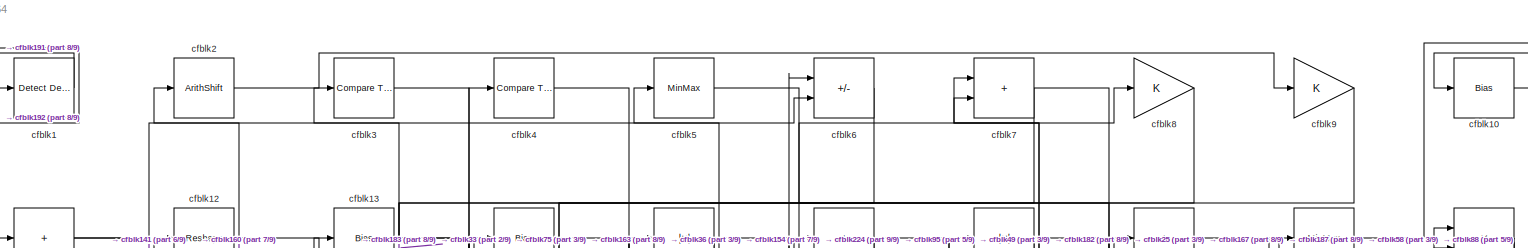
[diagram: root canvas - part 1/9, full width, top band]
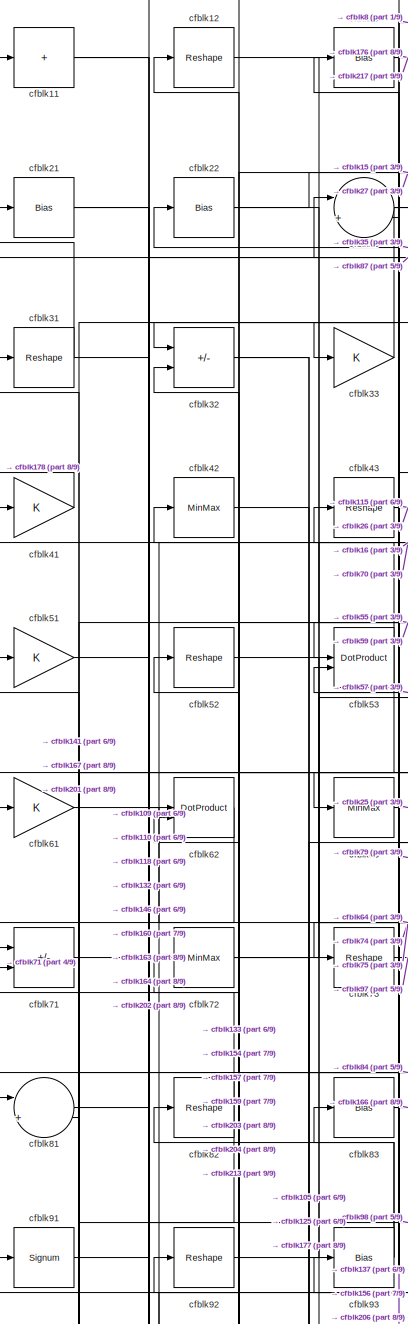
[diagram: root canvas - part 2/9, top left region]
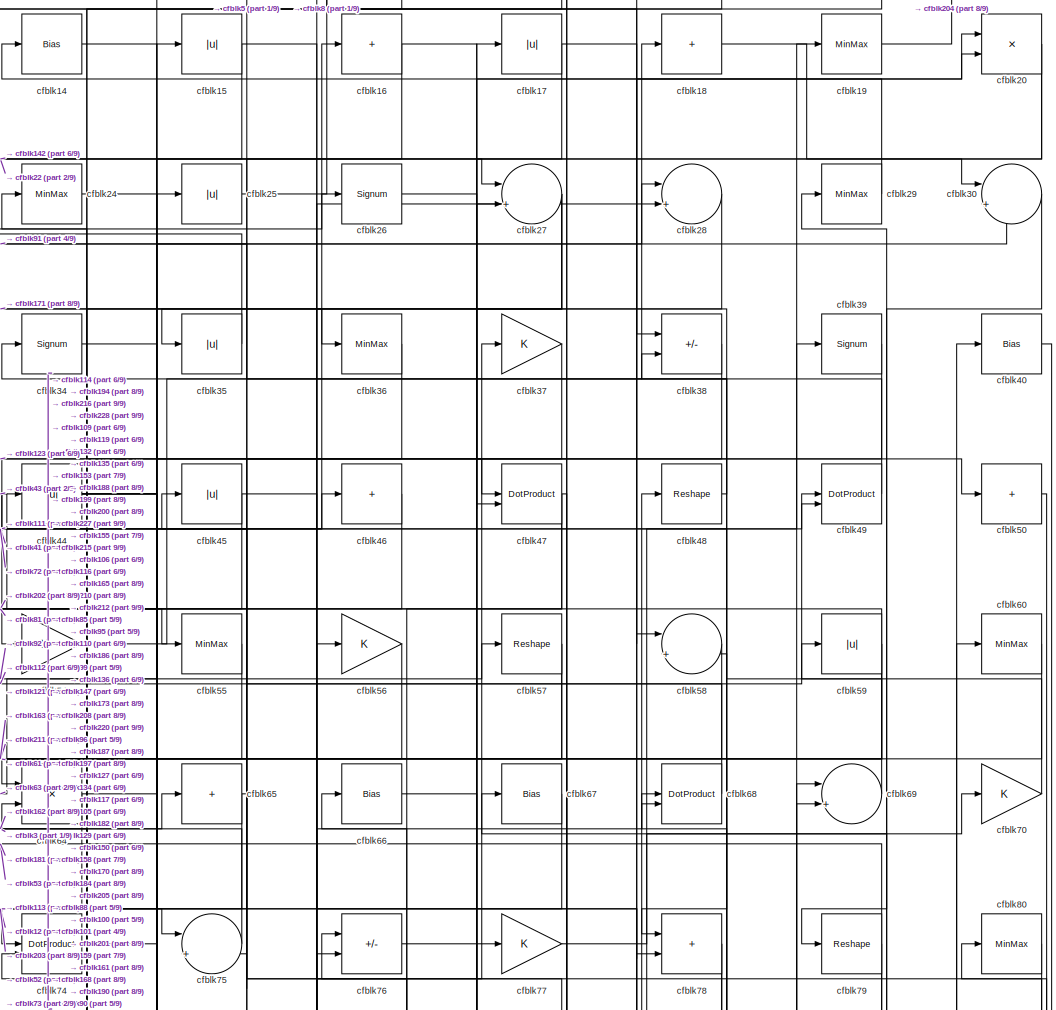
[diagram: root canvas - part 3/9, top center region]
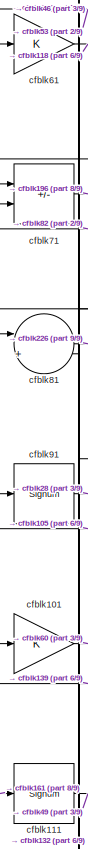
[diagram: root canvas - part 4/9, middle left region]
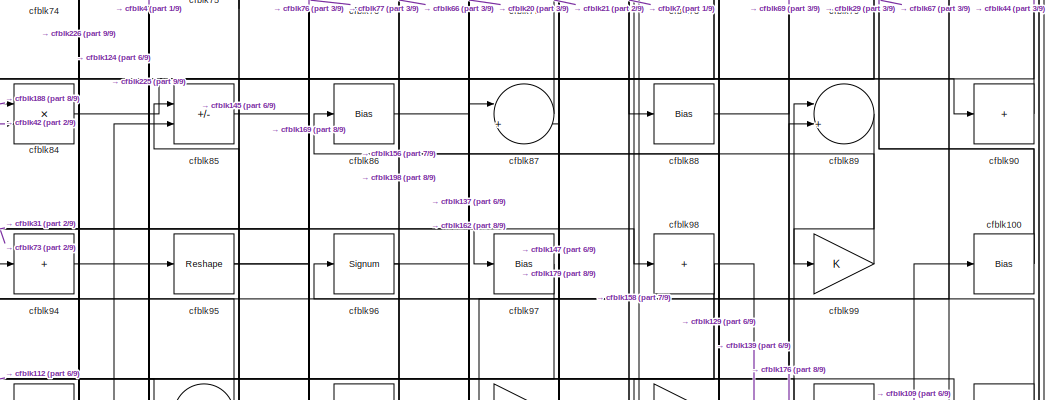
[diagram: root canvas - part 5/9, central region]
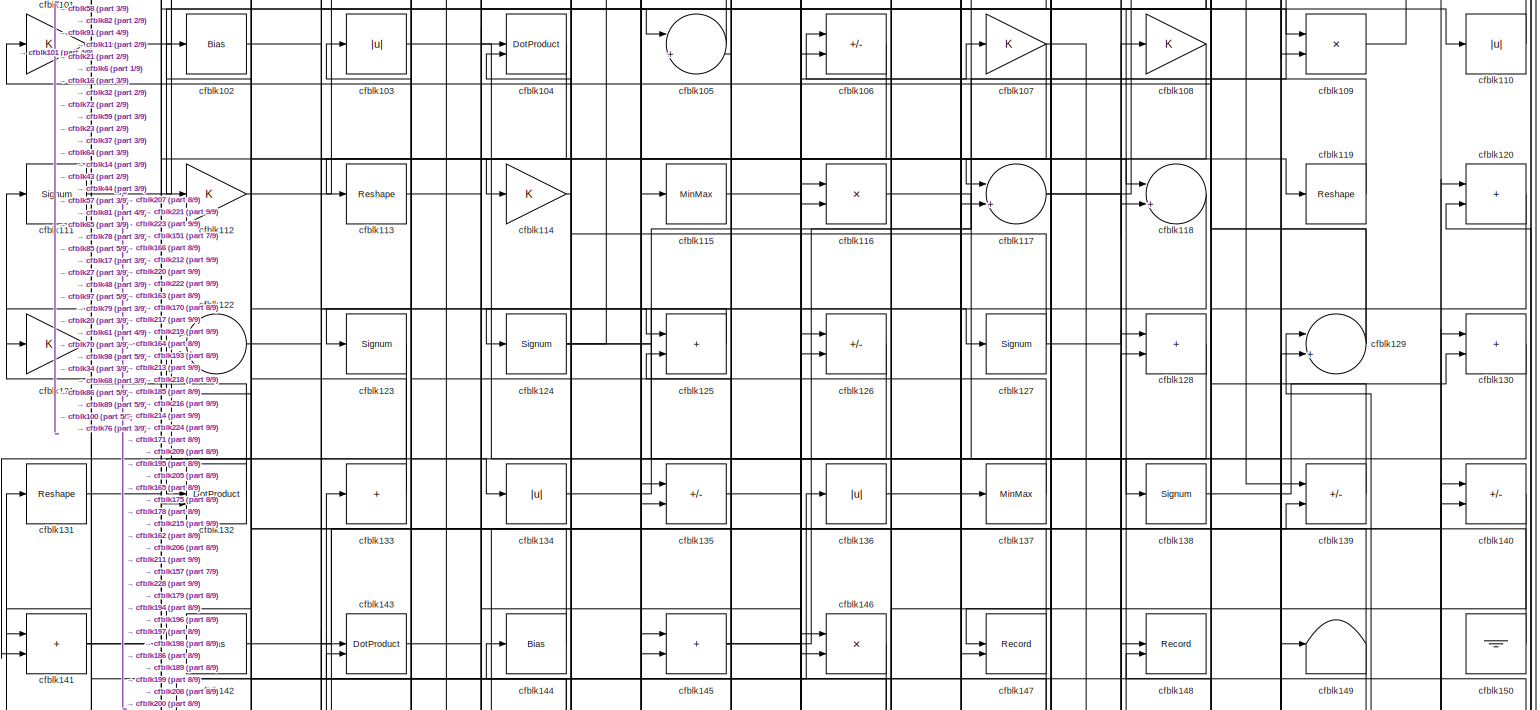
[diagram: root canvas - part 6/9, full width, middle band]
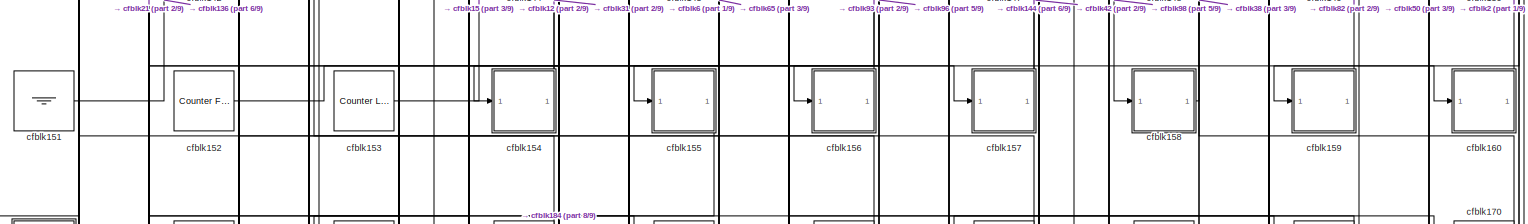
[diagram: root canvas - part 7/9, full width, bottom band]
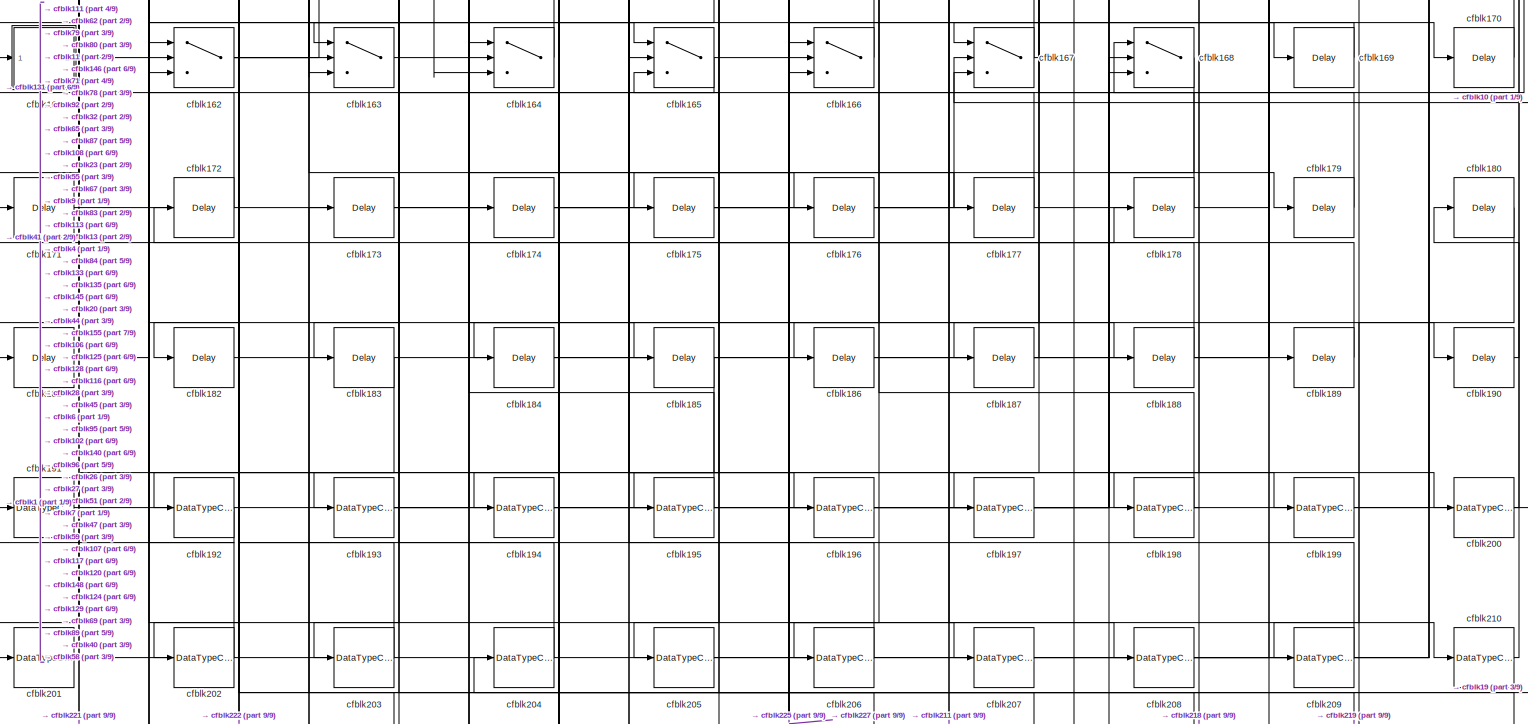
[diagram: root canvas - part 8/9, full width, bottom band]
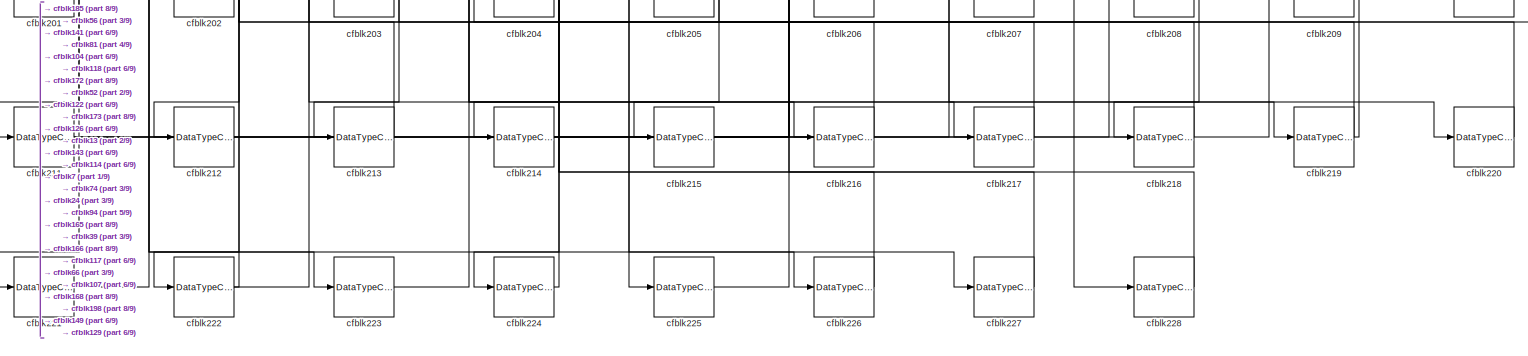
[diagram: root canvas - part 9/9, full width, bottom band]
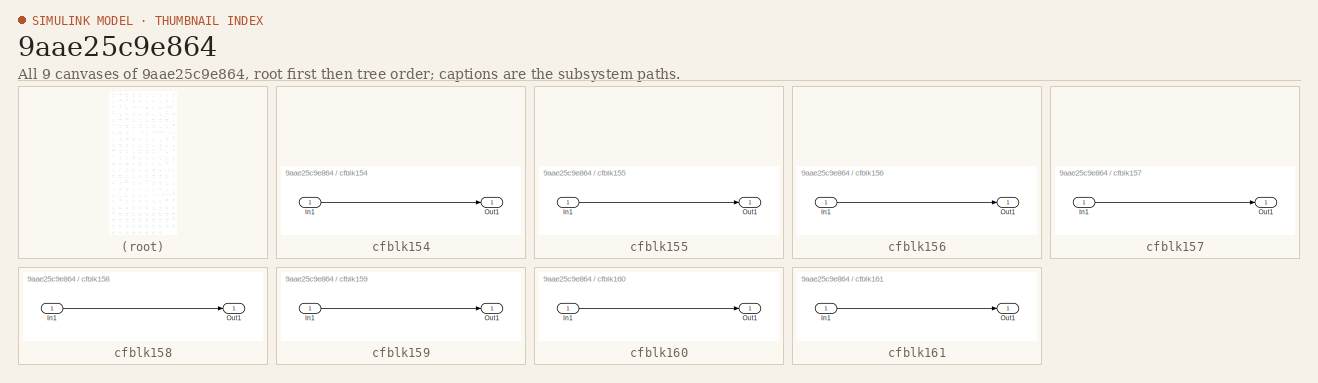
[diagram: thumbnail index - all 9 canvases of the model, root first then tree order]
MODEL slx_9aae25c9e864
KIND model
CONFIG AbsTol = auto
CONFIG EnableMultiTasking = off
CONFIG FixedStep = auto
CONFIG MaxStep = auto
CONFIG MinStep = auto
CONFIG RelTol = 1e-3
CONFIG SampleTimeConstraint = Unconstrained
CONFIG SolverName = VariableStepAuto
CONFIG StartTime = 0.0
CONFIG StopTime = 10.0
BLOCK [Reference] cfblk1  REF=simulink/Logic and Bit
Operations/Detect
Decrease
  LibrarySourceBlock = hdlsllib/Logic and Bit\nOperations/Detect\nDecrease
  SourceBlock = simulink/Logic and Bit\nOperations/Detect\nDecrease
  SourceType = Detect Decrease
BLOCK [Bias] cfblk10
  Bias = 0.0
  SaturateOnIntegerOverflow = off
BLOCK [Bias] cfblk100
  Bias = 0.0
  SaturateOnIntegerOverflow = off
BLOCK [Gain] cfblk101
BLOCK [Bias] cfblk102
  Bias = 0.0
  SaturateOnIntegerOverflow = off
BLOCK [Abs] cfblk103
  SaturateOnIntegerOverflow = off
BLOCK [DotProduct] cfblk104
  OutDataTypeStr = Inherit: Inherit via internal rule
BLOCK [Sum] cfblk105
  Inputs = |++
BLOCK [Sum] cfblk106
  IconShape = rectangular
  Inputs = +-
BLOCK [Gain] cfblk107
BLOCK [Gain] cfblk108
BLOCK [Product] cfblk109
  Inputs = */
  RndMeth = Zero
  SaturateOnIntegerOverflow = on
BLOCK [Sum] cfblk11
  IconShape = rectangular
  Inputs = +
BLOCK [Abs] cfblk110
  SaturateOnIntegerOverflow = off
BLOCK [Signum] cfblk111
BLOCK [Gain] cfblk112
BLOCK [Reshape] cfblk113
BLOCK [Gain] cfblk114
BLOCK [MinMax] cfblk115
BLOCK [Product] cfblk116
  Inputs = */
  RndMeth = Zero
  SaturateOnIntegerOverflow = on
BLOCK [Sum] cfblk117
  Inputs = |++
BLOCK [Sum] cfblk118
  Inputs = |++
BLOCK [Reshape] cfblk119
BLOCK [Reshape] cfblk12
BLOCK [Sum] cfblk120
  IconShape = rectangular
BLOCK [Gain] cfblk121
BLOCK [Sum] cfblk122
  Inputs = |++
BLOCK [Signum] cfblk123
BLOCK [Signum] cfblk124
BLOCK [Sum] cfblk125
  IconShape = rectangular
BLOCK [Sum] cfblk126
  IconShape = rectangular
  Inputs = +-
BLOCK [Signum] cfblk127
BLOCK [Sum] cfblk128
  IconShape = rectangular
BLOCK [Sum] cfblk129
  Inputs = |++
BLOCK [Bias] cfblk13
  Bias = 0.0
  SaturateOnIntegerOverflow = off
BLOCK [Sum] cfblk130
  IconShape = rectangular
BLOCK [Reshape] cfblk131
BLOCK [DotProduct] cfblk132
  OutDataTypeStr = Inherit: Inherit via internal rule
BLOCK [Sum] cfblk133
  IconShape = rectangular
  Inputs = +
BLOCK [Abs] cfblk134
  SaturateOnIntegerOverflow = off
BLOCK [Sum] cfblk135
  IconShape = rectangular
  Inputs = +-
BLOCK [Abs] cfblk136
  SaturateOnIntegerOverflow = off
BLOCK [MinMax] cfblk137
BLOCK [Signum] cfblk138
BLOCK [Sum] cfblk139
  IconShape = rectangular
  Inputs = +-
BLOCK [Bias] cfblk14
  Bias = 0.0
  SaturateOnIntegerOverflow = off
BLOCK [Sum] cfblk140
  IconShape = rectangular
  Inputs = +-
BLOCK [Sum] cfblk141
  IconShape = rectangular
BLOCK [Bias] cfblk142
  Bias = 0.0
  SaturateOnIntegerOverflow = off
BLOCK [DotProduct] cfblk143
  OutDataTypeStr = Inherit: Inherit via internal rule
BLOCK [Bias] cfblk144
  Bias = 0.0
  SaturateOnIntegerOverflow = off
BLOCK [Sum] cfblk145
  IconShape = rectangular
BLOCK [Product] cfblk146
  Inputs = */
  RndMeth = Zero
  SaturateOnIntegerOverflow = on
BLOCK [Record] cfblk147
  CompatibilityTag = XY
  FileSettingsInternal = {"entries":[{"content":{"excelSettings":{"content":{},"type":"Streamout.ExcelSettings"}},"type":"Streamout.FileSettingStorage","uuid":""}],"packageUris":["http:\/\/schema.mathworks.com\/mf0\/streamout_blocks\/R2020a"],"version":"1.0"}
  Layout = [1 1]
  SignalsInternal = {"entries":[{"content":{"signals":[{"content":{"blockPath":[],"dimensions":[1],"domain":"","lineColor":"#a2142f","plots":[1],"port":1,"signalID":4171,"signalName":"XY Graph:1"},"type":"RecordBlkView.Signal","uuid":""},{"content":{"blockPath":[],"dimensions":[1],"domain":"","lineColor":"#139fff","plots":[1],"port":2,"signalID":4174,"signalName":"XY Graph:2"},"type":"RecordBlkView.Signal","uuid":""}...<+146ch>
  VisualizationBindings = {"xyplotplugin":{"info":[{"series":[{"bindingParametersList":[{"parameter":"X-Axis","signalID":4171,"signalName":"XY Graph:1"},{"parameter":"Y-Axis","signalID":4174,"signalName":"XY Graph:2"}],"seriesID":6691}],"subplotID":1}]}}
  st = -1
BLOCK [Record] cfblk148
  CompatibilityTag = XY
  FileSettingsInternal = {"entries":[{"content":{"excelSettings":{"content":{},"type":"Streamout.ExcelSettings"}},"type":"Streamout.FileSettingStorage","uuid":""}],"packageUris":["http:\/\/schema.mathworks.com\/mf0\/streamout_blocks\/R2020a"],"version":"1.0"}
  Layout = [1 1]
  SignalsInternal = {"entries":[{"content":{"signals":[{"content":{"blockPath":[],"dimensions":[1],"domain":"","lineColor":"#a2142f","plots":[1],"port":1,"signalID":4179,"signalName":"XY Graph:1"},"type":"RecordBlkView.Signal","uuid":""},{"content":{"blockPath":[],"dimensions":[1],"domain":"","lineColor":"#139fff","plots":[1],"port":2,"signalID":4182,"signalName":"XY Graph:2"},"type":"RecordBlkView.Signal","uuid":""}...<+146ch>
  VisualizationBindings = {"xyplotplugin":{"info":[{"series":[{"bindingParametersList":[{"parameter":"X-Axis","signalID":4179,"signalName":"XY Graph:1"},{"parameter":"Y-Axis","signalID":4182,"signalName":"XY Graph:2"}],"seriesID":17608}],"subplotID":1}]}}
  st = -1
BLOCK [Terminator] cfblk149
BLOCK [Abs] cfblk15
  SaturateOnIntegerOverflow = off
BLOCK [Ground] cfblk150
BLOCK [Ground] cfblk151
BLOCK [Reference] cfblk152  REF=hdlsllib/Sources/Counter
Free-Running
  SourceBlock = hdlsllib/Sources/Counter\nFree-Running
  SourceType = Counter Free-Running
BLOCK [Reference] cfblk153  REF=hdlsllib/Sources/Counter
Limited
  SourceBlock = hdlsllib/Sources/Counter\nLimited
  SourceType = Counter Limited
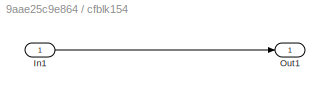
BLOCK [SubSystem] cfblk154
  LibrarySourceBlock = hdlsllib/Ports &\nSubsystems/Subsystem
BLOCK [Inport] cfblk154/In1
BLOCK [Outport] cfblk154/Out1
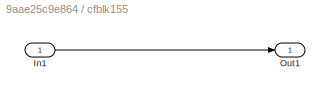
BLOCK [SubSystem] cfblk155
  LibrarySourceBlock = hdlsllib/Ports &\nSubsystems/Subsystem
BLOCK [Inport] cfblk155/In1
BLOCK [Outport] cfblk155/Out1
BLOCK [SubSystem] cfblk156
  LibrarySourceBlock = hdlsllib/Ports &\nSubsystems/Subsystem
BLOCK [Inport] cfblk156/In1
BLOCK [Outport] cfblk156/Out1
BLOCK [SubSystem] cfblk157
  LibrarySourceBlock = hdlsllib/Ports &\nSubsystems/Subsystem
BLOCK [Inport] cfblk157/In1
BLOCK [Outport] cfblk157/Out1
BLOCK [SubSystem] cfblk158
  LibrarySourceBlock = hdlsllib/Ports &\nSubsystems/Subsystem
BLOCK [Inport] cfblk158/In1
BLOCK [Outport] cfblk158/Out1
BLOCK [SubSystem] cfblk159
  LibrarySourceBlock = hdlsllib/Ports &\nSubsystems/Subsystem
BLOCK [Inport] cfblk159/In1
BLOCK [Outport] cfblk159/Out1
BLOCK [Sum] cfblk16
  IconShape = rectangular
  Inputs = +
BLOCK [SubSystem] cfblk160
  LibrarySourceBlock = hdlsllib/Ports &\nSubsystems/Subsystem
BLOCK [Inport] cfblk160/In1
BLOCK [Outport] cfblk160/Out1
BLOCK [SubSystem] cfblk161
  LibrarySourceBlock = hdlsllib/Ports &\nSubsystems/Subsystem
BLOCK [Inport] cfblk161/In1
BLOCK [Outport] cfblk161/Out1
BLOCK [Switch] cfblk162
  InputSameDT = off
  SaturateOnIntegerOverflow = off
BLOCK [Switch] cfblk163
  InputSameDT = off
  SaturateOnIntegerOverflow = off
BLOCK [Switch] cfblk164
  InputSameDT = off
  SaturateOnIntegerOverflow = off
BLOCK [Switch] cfblk165
  InputSameDT = off
  SaturateOnIntegerOverflow = off
BLOCK [Switch] cfblk166
  InputSameDT = off
  SaturateOnIntegerOverflow = off
BLOCK [Switch] cfblk167
  InputSameDT = off
  SaturateOnIntegerOverflow = off
BLOCK [Switch] cfblk168
  InputSameDT = off
  SaturateOnIntegerOverflow = off
BLOCK [Delay] cfblk169
  InputPortMap = u0
  SampleTime = 1
BLOCK [Abs] cfblk17
  SaturateOnIntegerOverflow = off
BLOCK [Delay] cfblk170
  InputPortMap = u0
  SampleTime = 1
BLOCK [Delay] cfblk171
  InputPortMap = u0
  SampleTime = 1
BLOCK [Delay] cfblk172
  InputPortMap = u0
  SampleTime = 1
BLOCK [Delay] cfblk173
  InputPortMap = u0
  SampleTime = 1
BLOCK [Delay] cfblk174
  InputPortMap = u0
  SampleTime = 1
BLOCK [Delay] cfblk175
  InputPortMap = u0
  SampleTime = 1
BLOCK [Delay] cfblk176
  InputPortMap = u0
  SampleTime = 1
BLOCK [Delay] cfblk177
  InputPortMap = u0
  SampleTime = 1
BLOCK [Delay] cfblk178
  InputPortMap = u0
  SampleTime = 1
BLOCK [Delay] cfblk179
  InputPortMap = u0
  SampleTime = 1
BLOCK [Sum] cfblk18
  IconShape = rectangular
  Inputs = +
BLOCK [Delay] cfblk180
  InputPortMap = u0
  SampleTime = 1
BLOCK [Delay] cfblk181
  InputPortMap = u0
  SampleTime = 1
BLOCK [Delay] cfblk182
  InputPortMap = u0
  SampleTime = 1
BLOCK [Delay] cfblk183
  InputPortMap = u0
  SampleTime = 1
BLOCK [Delay] cfblk184
  InputPortMap = u0
  SampleTime = 1
BLOCK [Delay] cfblk185
  InputPortMap = u0
  SampleTime = 1
BLOCK [Delay] cfblk186
  InputPortMap = u0
  SampleTime = 1
BLOCK [Delay] cfblk187
  InputPortMap = u0
  SampleTime = 1
BLOCK [Delay] cfblk188
  InputPortMap = u0
  SampleTime = 1
BLOCK [Delay] cfblk189
  InputPortMap = u0
  SampleTime = 1
BLOCK [MinMax] cfblk19
BLOCK [Delay] cfblk190
  InputPortMap = u0
  SampleTime = 1
BLOCK [DataTypeConversion] cfblk191
  OutDataTypeStr = uint8
  RndMeth = Floor
  SaturateOnIntegerOverflow = off
BLOCK [DataTypeConversion] cfblk192
  OutDataTypeStr = uint8
  RndMeth = Floor
  SaturateOnIntegerOverflow = off
BLOCK [DataTypeConversion] cfblk193
  RndMeth = Floor
  SaturateOnIntegerOverflow = off
BLOCK [DataTypeConversion] cfblk194
  OutDataTypeStr = uint8
  RndMeth = Floor
  SaturateOnIntegerOverflow = off
BLOCK [DataTypeConversion] cfblk195
  OutDataTypeStr = uint8
  RndMeth = Floor
  SaturateOnIntegerOverflow = off
BLOCK [DataTypeConversion] cfblk196
  OutDataTypeStr = uint8
  RndMeth = Floor
  SaturateOnIntegerOverflow = off
BLOCK [DataTypeConversion] cfblk197
  OutDataTypeStr = uint8
  RndMeth = Floor
  SaturateOnIntegerOverflow = off
BLOCK [DataTypeConversion] cfblk198
  RndMeth = Floor
  SaturateOnIntegerOverflow = off
BLOCK [DataTypeConversion] cfblk199
  OutDataTypeStr = uint8
  RndMeth = Floor
  SaturateOnIntegerOverflow = off
BLOCK [ArithShift] cfblk2
  BitShiftNumber = 8
  InputPortMap = u0
BLOCK [Product] cfblk20
  Inputs = */
  RndMeth = Zero
  SaturateOnIntegerOverflow = on
BLOCK [DataTypeConversion] cfblk200
  OutDataTypeStr = uint8
  RndMeth = Floor
  SaturateOnIntegerOverflow = off
BLOCK [DataTypeConversion] cfblk201
  OutDataTypeStr = uint8
  RndMeth = Floor
  SaturateOnIntegerOverflow = off
BLOCK [DataTypeConversion] cfblk202
  OutDataTypeStr = uint8
  RndMeth = Floor
  SaturateOnIntegerOverflow = off
BLOCK [DataTypeConversion] cfblk203
  OutDataTypeStr = uint8
  RndMeth = Floor
  SaturateOnIntegerOverflow = off
BLOCK [DataTypeConversion] cfblk204
  OutDataTypeStr = uint8
  RndMeth = Floor
  SaturateOnIntegerOverflow = off
BLOCK [DataTypeConversion] cfblk205
  OutDataTypeStr = uint8
  RndMeth = Floor
  SaturateOnIntegerOverflow = off
BLOCK [DataTypeConversion] cfblk206
  OutDataTypeStr = uint8
  RndMeth = Floor
  SaturateOnIntegerOverflow = off
BLOCK [DataTypeConversion] cfblk207
  OutDataTypeStr = uint8
  RndMeth = Floor
  SaturateOnIntegerOverflow = off
BLOCK [DataTypeConversion] cfblk208
  OutDataTypeStr = uint8
  RndMeth = Floor
  SaturateOnIntegerOverflow = off
BLOCK [DataTypeConversion] cfblk209
  OutDataTypeStr = uint8
  RndMeth = Floor
  SaturateOnIntegerOverflow = off
BLOCK [Bias] cfblk21
  Bias = 0.0
  SaturateOnIntegerOverflow = off
BLOCK [DataTypeConversion] cfblk210
  OutDataTypeStr = uint8
  RndMeth = Floor
  SaturateOnIntegerOverflow = off
BLOCK [DataTypeConversion] cfblk211
  RndMeth = Floor
  SaturateOnIntegerOverflow = off
BLOCK [DataTypeConversion] cfblk212
  OutDataTypeStr = uint8
  RndMeth = Floor
  SaturateOnIntegerOverflow = off
BLOCK [DataTypeConversion] cfblk213
  OutDataTypeStr = uint8
  RndMeth = Floor
  SaturateOnIntegerOverflow = off
BLOCK [DataTypeConversion] cfblk214
  OutDataTypeStr = uint8
  RndMeth = Floor
  SaturateOnIntegerOverflow = off
BLOCK [DataTypeConversion] cfblk215
  OutDataTypeStr = uint8
  RndMeth = Floor
  SaturateOnIntegerOverflow = off
BLOCK [DataTypeConversion] cfblk216
  OutDataTypeStr = uint8
  RndMeth = Floor
  SaturateOnIntegerOverflow = off
BLOCK [DataTypeConversion] cfblk217
  OutDataTypeStr = uint8
  RndMeth = Floor
  SaturateOnIntegerOverflow = off
BLOCK [DataTypeConversion] cfblk218
  OutDataTypeStr = uint8
  RndMeth = Floor
  SaturateOnIntegerOverflow = off
BLOCK [DataTypeConversion] cfblk219
  RndMeth = Floor
  SaturateOnIntegerOverflow = off
BLOCK [Bias] cfblk22
  Bias = 0.0
  SaturateOnIntegerOverflow = off
BLOCK [DataTypeConversion] cfblk220
  OutDataTypeStr = uint8
  RndMeth = Floor
  SaturateOnIntegerOverflow = off
BLOCK [DataTypeConversion] cfblk221
  OutDataTypeStr = uint8
  RndMeth = Floor
  SaturateOnIntegerOverflow = off
BLOCK [DataTypeConversion] cfblk222
  RndMeth = Floor
  SaturateOnIntegerOverflow = off
BLOCK [DataTypeConversion] cfblk223
  OutDataTypeStr = uint8
  RndMeth = Floor
  SaturateOnIntegerOverflow = off
BLOCK [DataTypeConversion] cfblk224
  OutDataTypeStr = uint8
  RndMeth = Floor
  SaturateOnIntegerOverflow = off
BLOCK [DataTypeConversion] cfblk225
  OutDataTypeStr = uint8
  RndMeth = Floor
  SaturateOnIntegerOverflow = off
BLOCK [DataTypeConversion] cfblk226
  OutDataTypeStr = uint8
  RndMeth = Floor
  SaturateOnIntegerOverflow = off
BLOCK [DataTypeConversion] cfblk227
  OutDataTypeStr = uint8
  RndMeth = Floor
  SaturateOnIntegerOverflow = off
BLOCK [DataTypeConversion] cfblk228
  OutDataTypeStr = uint8
  RndMeth = Floor
  SaturateOnIntegerOverflow = off
BLOCK [Sum] cfblk23
  Inputs = |++
BLOCK [MinMax] cfblk24
BLOCK [Abs] cfblk25
  SaturateOnIntegerOverflow = off
BLOCK [Signum] cfblk26
BLOCK [Sum] cfblk27
  Inputs = |++
BLOCK [Sum] cfblk28
  Inputs = |++
BLOCK [MinMax] cfblk29
BLOCK [Reference] cfblk3  REF=hdlsllib/Logic and Bit
Operations/Compare
To Constant
  SourceBlock = hdlsllib/Logic and Bit\nOperations/Compare\nTo Constant
  SourceType = Compare To Constant
BLOCK [Sum] cfblk30
  Inputs = |++
BLOCK [Reshape] cfblk31
BLOCK [Sum] cfblk32
  IconShape = rectangular
  Inputs = +-
BLOCK [Gain] cfblk33
BLOCK [Signum] cfblk34
BLOCK [Abs] cfblk35
  SaturateOnIntegerOverflow = off
BLOCK [MinMax] cfblk36
BLOCK [Gain] cfblk37
BLOCK [Sum] cfblk38
  IconShape = rectangular
  Inputs = +-
BLOCK [Signum] cfblk39
BLOCK [Reference] cfblk4  REF=hdlsllib/Logic and Bit
Operations/Compare
To Zero
  SourceBlock = hdlsllib/Logic and Bit\nOperations/Compare\nTo Zero
  SourceType = Compare To Zero
BLOCK [Bias] cfblk40
  Bias = 0.0
  SaturateOnIntegerOverflow = off
BLOCK [Gain] cfblk41
BLOCK [MinMax] cfblk42
BLOCK [Reshape] cfblk43
BLOCK [Abs] cfblk44
  SaturateOnIntegerOverflow = off
BLOCK [Abs] cfblk45
  SaturateOnIntegerOverflow = off
BLOCK [Sum] cfblk46
  IconShape = rectangular
  Inputs = +
BLOCK [DotProduct] cfblk47
  OutDataTypeStr = Inherit: Inherit via internal rule
BLOCK [Reshape] cfblk48
BLOCK [DotProduct] cfblk49
  OutDataTypeStr = Inherit: Inherit via internal rule
BLOCK [MinMax] cfblk5
BLOCK [Sum] cfblk50
  IconShape = rectangular
  Inputs = +
BLOCK [Gain] cfblk51
BLOCK [Reshape] cfblk52
BLOCK [DotProduct] cfblk53
  OutDataTypeStr = Inherit: Inherit via internal rule
BLOCK [Gain] cfblk54
BLOCK [MinMax] cfblk55
BLOCK [Gain] cfblk56
BLOCK [Reshape] cfblk57
BLOCK [Sum] cfblk58
  Inputs = |++
BLOCK [Abs] cfblk59
  SaturateOnIntegerOverflow = off
BLOCK [Sum] cfblk6
  IconShape = rectangular
  Inputs = +-
BLOCK [MinMax] cfblk60
BLOCK [Gain] cfblk61
BLOCK [DotProduct] cfblk62
  OutDataTypeStr = Inherit: Inherit via internal rule
BLOCK [MinMax] cfblk63
BLOCK [Product] cfblk64
  Inputs = */
  RndMeth = Zero
  SaturateOnIntegerOverflow = on
BLOCK [Sum] cfblk65
  IconShape = rectangular
  Inputs = +
BLOCK [Bias] cfblk66
  Bias = 0.0
  SaturateOnIntegerOverflow = off
BLOCK [Bias] cfblk67
  Bias = 0.0
  SaturateOnIntegerOverflow = off
BLOCK [DotProduct] cfblk68
  OutDataTypeStr = Inherit: Inherit via internal rule
BLOCK [Sum] cfblk69
  Inputs = |++
BLOCK [Sum] cfblk7
  IconShape = rectangular
BLOCK [Gain] cfblk70
BLOCK [Sum] cfblk71
  IconShape = rectangular
  Inputs = +-
BLOCK [MinMax] cfblk72
BLOCK [Reshape] cfblk73
BLOCK [DotProduct] cfblk74
  OutDataTypeStr = Inherit: Inherit via internal rule
BLOCK [Sum] cfblk75
  Inputs = |++
BLOCK [Sum] cfblk76
  IconShape = rectangular
  Inputs = +-
BLOCK [Gain] cfblk77
BLOCK [Sum] cfblk78
  IconShape = rectangular
BLOCK [Reshape] cfblk79
BLOCK [Gain] cfblk8
BLOCK [MinMax] cfblk80
BLOCK [Sum] cfblk81
  Inputs = |++
BLOCK [Reshape] cfblk82
BLOCK [Bias] cfblk83
  Bias = 0.0
  SaturateOnIntegerOverflow = off
BLOCK [Product] cfblk84
  Inputs = */
  RndMeth = Zero
  SaturateOnIntegerOverflow = on
BLOCK [Sum] cfblk85
  IconShape = rectangular
  Inputs = +-
BLOCK [Bias] cfblk86
  Bias = 0.0
  SaturateOnIntegerOverflow = off
BLOCK [Sum] cfblk87
  Inputs = |++
BLOCK [Bias] cfblk88
  Bias = 0.0
  SaturateOnIntegerOverflow = off
BLOCK [Sum] cfblk89
  Inputs = |++
BLOCK [Gain] cfblk9
BLOCK [Sum] cfblk90
  IconShape = rectangular
  Inputs = +
BLOCK [Signum] cfblk91
BLOCK [Reshape] cfblk92
BLOCK [Bias] cfblk93
  Bias = 0.0
  SaturateOnIntegerOverflow = off
BLOCK [Sum] cfblk94
  IconShape = rectangular
  Inputs = +
BLOCK [Reshape] cfblk95
BLOCK [Signum] cfblk96
BLOCK [Bias] cfblk97
  Bias = 0.0
  SaturateOnIntegerOverflow = off
BLOCK [Sum] cfblk98
  IconShape = rectangular
  Inputs = +
BLOCK [Gain] cfblk99
NET cfblk100:1 -> cfblk29:1, cfblk67:1
LINE cfblk101:1 -> cfblk60:1
LINE cfblk102:1 -> cfblk170:1
LINE cfblk103:1 -> cfblk148:1
LINE cfblk104:1 -> cfblk222:1
LINE cfblk105:1 -> cfblk81:2
LINE cfblk106:1 -> cfblk205:1
NET cfblk107:1 -> cfblk163:3, cfblk228:1
LINE cfblk108:1 -> cfblk193:1
LINE cfblk109:1 -> cfblk100:1
LINE cfblk10:1 -> cfblk167:2
LINE cfblk110:1 -> cfblk76:1
LINE cfblk111:1 -> cfblk49:2
LINE cfblk112:1 -> cfblk59:1
LINE cfblk113:1 -> cfblk185:1
LINE cfblk114:1 -> cfblk214:1
LINE cfblk115:1 -> cfblk107:1
LINE cfblk116:1 -> cfblk138:1
NET cfblk117:1 -> cfblk179:1, cfblk70:1
LINE cfblk118:1 -> cfblk212:1
LINE cfblk119:1 -> cfblk106:1
NET cfblk11:1 -> cfblk118:1, cfblk163:2
LINE cfblk120:1 -> cfblk198:1
LINE cfblk121:1 -> cfblk134:1
LINE cfblk122:1 -> cfblk219:1
LINE cfblk123:1 -> cfblk141:2
NET cfblk124:1 -> cfblk127:1, cfblk189:1, cfblk85:2
LINE cfblk125:1 -> cfblk124:1
LINE cfblk126:1 -> cfblk213:1
NET cfblk127:1 -> cfblk20:1, cfblk64:2
LINE cfblk128:1 -> cfblk195:1
NET cfblk129:1 -> cfblk34:1, cfblk86:1
LINE cfblk12:1 -> cfblk75:1
LINE cfblk130:1 -> cfblk145:2
LINE cfblk131:1 -> cfblk207:1
LINE cfblk132:1 -> cfblk91:1
LINE cfblk133:1 -> cfblk32:2
LINE cfblk134:1 -> cfblk48:1
LINE cfblk135:1 -> cfblk68:2
LINE cfblk136:1 -> cfblk17:1
LINE cfblk137:1 -> cfblk23:2
LINE cfblk138:1 -> cfblk130:2
LINE cfblk139:1 -> cfblk101:1
NET cfblk13:1 -> cfblk176:1, cfblk217:1
LINE cfblk140:1 -> cfblk206:1
NET cfblk141:1 -> cfblk223:1, cfblk6:2
LINE cfblk142:1 -> cfblk130:1
LINE cfblk143:1 -> cfblk216:1
LINE cfblk144:1 -> cfblk103:1
NET cfblk145:1 -> cfblk139:2, cfblk85:1, cfblk89:1
LINE cfblk146:1 -> cfblk162:2
LINE cfblk14:1 -> cfblk119:1
LINE cfblk150:1 -> cfblk68:1
LINE cfblk151:1 -> cfblk136:1
LINE cfblk152:1 -> cfblk157:1
LINE cfblk153:1 -> cfblk15:1
LINE cfblk154/In1:1 -> cfblk154/Out1:1
NET cfblk154:1 -> cfblk12:1, cfblk31:1
LINE cfblk155/In1:1 -> cfblk155/Out1:1
LINE cfblk155:1 -> cfblk184:1
LINE cfblk156/In1:1 -> cfblk156/Out1:1
LINE cfblk156:1 -> cfblk93:1
LINE cfblk157/In1:1 -> cfblk157/Out1:1
NET cfblk157:1 -> cfblk144:1, cfblk42:1
LINE cfblk158/In1:1 -> cfblk158/Out1:1
LINE cfblk158:1 -> cfblk38:2
LINE cfblk159/In1:1 -> cfblk159/Out1:1
LINE cfblk159:1 -> cfblk82:1
NET cfblk15:1 -> cfblk63:1, cfblk78:2
LINE cfblk160/In1:1 -> cfblk160/Out1:1
LINE cfblk160:1 -> cfblk2:1
LINE cfblk161/In1:1 -> cfblk161/Out1:1
NET cfblk161:1 -> cfblk111:1, cfblk190:1
NET cfblk162:1 -> cfblk165:1, cfblk65:1, cfblk87:1
LINE cfblk163:1 -> cfblk4:1
LINE cfblk164:1 -> cfblk133:1
NET cfblk165:1 -> cfblk131:1, cfblk28:2
LINE cfblk166:1 -> cfblk102:1
NET cfblk167:1 -> cfblk51:1, cfblk7:1
LINE cfblk168:1 -> cfblk175:1
LINE cfblk169:1 -> cfblk167:1
NET cfblk16:1 -> cfblk142:1, cfblk50:1
LINE cfblk170:1 -> cfblk58:2
LINE cfblk171:1 -> cfblk145:1
LINE cfblk172:1 -> cfblk162:1
LINE cfblk173:1 -> cfblk27:2
LINE cfblk174:1 -> cfblk167:3
LINE cfblk175:1 -> cfblk116:1
LINE cfblk176:1 -> cfblk89:2
LINE cfblk177:1 -> cfblk23:1
LINE cfblk178:1 -> cfblk146:1
LINE cfblk179:1 -> cfblk87:2
NET cfblk17:1 -> cfblk38:1, cfblk47:2
LINE cfblk180:1 -> cfblk209:1
LINE cfblk181:1 -> cfblk162:3
LINE cfblk182:1 -> cfblk6:1
LINE cfblk183:1 -> cfblk192:1
LINE cfblk184:1 -> cfblk69:1
LINE cfblk185:1 -> cfblk221:1
LINE cfblk186:1 -> cfblk129:2
LINE cfblk187:1 -> cfblk7:2
LINE cfblk188:1 -> cfblk84:1
LINE cfblk189:1 -> cfblk125:2
LINE cfblk18:1 -> cfblk30:1
LINE cfblk190:1 -> cfblk80:1
LINE cfblk191:1 -> cfblk10:1
LINE cfblk192:1 -> cfblk1:1
NET cfblk193:1 -> cfblk168:2, cfblk174:1
LINE cfblk194:1 -> cfblk108:1
LINE cfblk195:1 -> cfblk164:1
LINE cfblk196:1 -> cfblk128:1
LINE cfblk197:1 -> cfblk128:2
NET cfblk198:1 -> cfblk148:2, cfblk218:1, cfblk96:1
LINE cfblk199:1 -> cfblk120:1
LINE cfblk19:1 -> cfblk204:1
LINE cfblk1:1 -> cfblk191:1
LINE cfblk200:1 -> cfblk120:2
LINE cfblk201:1 -> cfblk40:1
LINE cfblk202:1 -> cfblk62:1
LINE cfblk203:1 -> cfblk62:2
LINE cfblk204:1 -> cfblk92:1
LINE cfblk205:1 -> cfblk19:1
LINE cfblk206:1 -> cfblk13:1
LINE cfblk207:1 -> cfblk140:1
LINE cfblk208:1 -> cfblk140:2
LINE cfblk209:1 -> cfblk135:1
NET cfblk20:1 -> cfblk165:2, cfblk75:2
LINE cfblk210:1 -> cfblk180:1
NET cfblk211:1 -> cfblk117:2, cfblk149:1, cfblk168:3
LINE cfblk212:1 -> cfblk56:1
LINE cfblk213:1 -> cfblk52:1
LINE cfblk214:1 -> cfblk126:1
LINE cfblk215:1 -> cfblk126:2
LINE cfblk216:1 -> cfblk74:2
LINE cfblk217:1 -> cfblk143:1
LINE cfblk218:1 -> cfblk143:2
NET cfblk219:1 -> cfblk129:1, cfblk165:3
NET cfblk21:1 -> cfblk110:1, cfblk160:1
LINE cfblk220:1 -> cfblk122:1
LINE cfblk221:1 -> cfblk122:2
NET cfblk222:1 -> cfblk172:1, cfblk173:1
LINE cfblk223:1 -> cfblk104:1
LINE cfblk224:1 -> cfblk104:2
LINE cfblk225:1 -> cfblk166:2
LINE cfblk226:1 -> cfblk94:1
LINE cfblk227:1 -> cfblk166:1
LINE cfblk228:1 -> cfblk24:1
NET cfblk22:1 -> cfblk27:1, cfblk55:1
NET cfblk23:1 -> cfblk109:2, cfblk132:2, cfblk146:2
LINE cfblk24:1 -> cfblk227:1
LINE cfblk25:1 -> cfblk8:1
LINE cfblk26:1 -> cfblk208:1
NET cfblk27:1 -> cfblk114:1, cfblk116:2, cfblk147:2
LINE cfblk28:1 -> cfblk171:1
LINE cfblk29:1 -> cfblk14:1
LINE cfblk2:1 -> cfblk9:1
LINE cfblk30:1 -> cfblk79:1
NET cfblk31:1 -> cfblk11:1, cfblk98:1
NET cfblk32:1 -> cfblk105:1, cfblk177:1
LINE cfblk33:1 -> cfblk32:1
LINE cfblk34:1 -> cfblk47:1
LINE cfblk35:1 -> cfblk22:1
LINE cfblk36:1 -> cfblk64:1
LINE cfblk37:1 -> cfblk123:1
LINE cfblk38:1 -> cfblk54:1
LINE cfblk39:1 -> cfblk215:1
LINE cfblk3:1 -> cfblk36:1
LINE cfblk40:1 -> cfblk168:1
LINE cfblk41:1 -> cfblk178:1
LINE cfblk42:1 -> cfblk84:2
NET cfblk43:1 -> cfblk115:1, cfblk26:1
NET cfblk44:1 -> cfblk109:1, cfblk188:1, cfblk199:1, cfblk200:1
NET cfblk45:1 -> cfblk210:1, cfblk61:1
LINE cfblk46:1 -> cfblk81:1
NET cfblk47:1 -> cfblk186:1, cfblk187:1, cfblk202:1
LINE cfblk48:1 -> cfblk35:1
LINE cfblk49:1 -> cfblk5:1
LINE cfblk4:1 -> cfblk95:1
LINE cfblk50:1 -> cfblk159:1
LINE cfblk51:1 -> cfblk164:2
LINE cfblk52:1 -> cfblk74:1
NET cfblk53:1 -> cfblk43:1, cfblk71:1
LINE cfblk54:1 -> cfblk18:1
LINE cfblk55:1 -> cfblk163:1
LINE cfblk56:1 -> cfblk211:1
NET cfblk57:1 -> cfblk132:1, cfblk135:2
LINE cfblk58:1 -> cfblk121:1
NET cfblk59:1 -> cfblk106:2, cfblk194:1, cfblk197:1, cfblk53:1
LINE cfblk5:1 -> cfblk58:1
LINE cfblk60:1 -> cfblk78:1
LINE cfblk61:1 -> cfblk118:2
LINE cfblk62:1 -> cfblk201:1
LINE cfblk63:1 -> cfblk25:1
NET cfblk64:1 -> cfblk30:2, cfblk73:1
NET cfblk65:1 -> cfblk113:1, cfblk155:1
LINE cfblk66:1 -> cfblk220:1
LINE cfblk67:1 -> cfblk203:1
LINE cfblk68:1 -> cfblk45:1
LINE cfblk69:1 -> cfblk49:1
LINE cfblk6:1 -> cfblk154:1
LINE cfblk70:1 -> cfblk41:1
LINE cfblk71:1 -> cfblk196:1
NET cfblk72:1 -> cfblk125:1, cfblk16:1
LINE cfblk73:1 -> cfblk97:1
LINE cfblk74:1 -> cfblk46:1
LINE cfblk75:1 -> cfblk3:1
LINE cfblk76:1 -> cfblk37:1
LINE cfblk77:1 -> cfblk39:1
NET cfblk78:1 -> cfblk105:2, cfblk182:1
NET cfblk79:1 -> cfblk117:1, cfblk181:1, cfblk53:2
NET cfblk7:1 -> cfblk224:1, cfblk88:1
LINE cfblk80:1 -> cfblk161:1
LINE cfblk81:1 -> cfblk226:1
NET cfblk82:1 -> cfblk141:1, cfblk71:2
NET cfblk83:1 -> cfblk164:3, cfblk166:3
LINE cfblk84:1 -> cfblk90:1
LINE cfblk85:1 -> cfblk76:2
LINE cfblk86:1 -> cfblk137:1
LINE cfblk87:1 -> cfblk21:1
LINE cfblk88:1 -> cfblk69:2
LINE cfblk89:1 -> cfblk99:1
LINE cfblk8:1 -> cfblk33:1
LINE cfblk90:1 -> cfblk44:1
LINE cfblk91:1 -> cfblk28:1
LINE cfblk92:1 -> cfblk57:1
NET cfblk93:1 -> cfblk72:1, cfblk83:1
LINE cfblk94:1 -> cfblk225:1
NET cfblk95:1 -> cfblk169:1, cfblk77:1
NET cfblk96:1 -> cfblk156:1, cfblk20:2
LINE cfblk97:1 -> cfblk112:1
NET cfblk98:1 -> cfblk139:1, cfblk147:1, cfblk158:1
LINE cfblk99:1 -> cfblk66:1
LINE cfblk9:1 -> cfblk183:1
note: NET lines group one-source signal fan-out (src -> all destinations, sorted); 1:1 wires keep LINE
